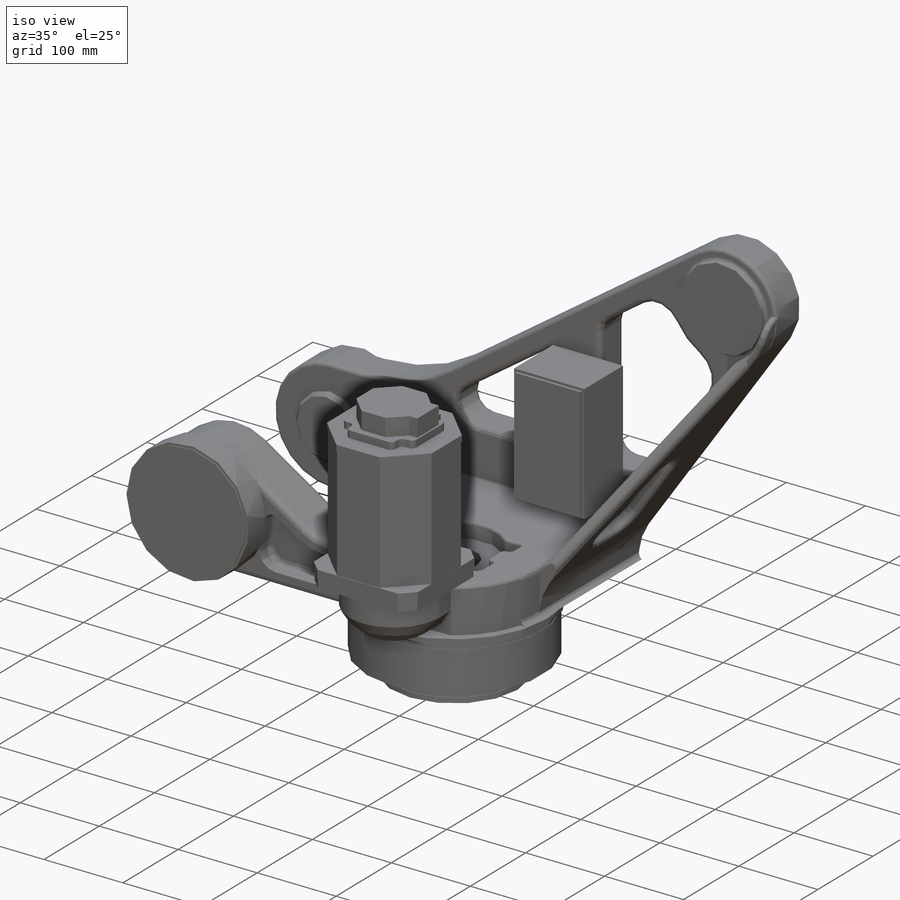
[diagram: iso view]
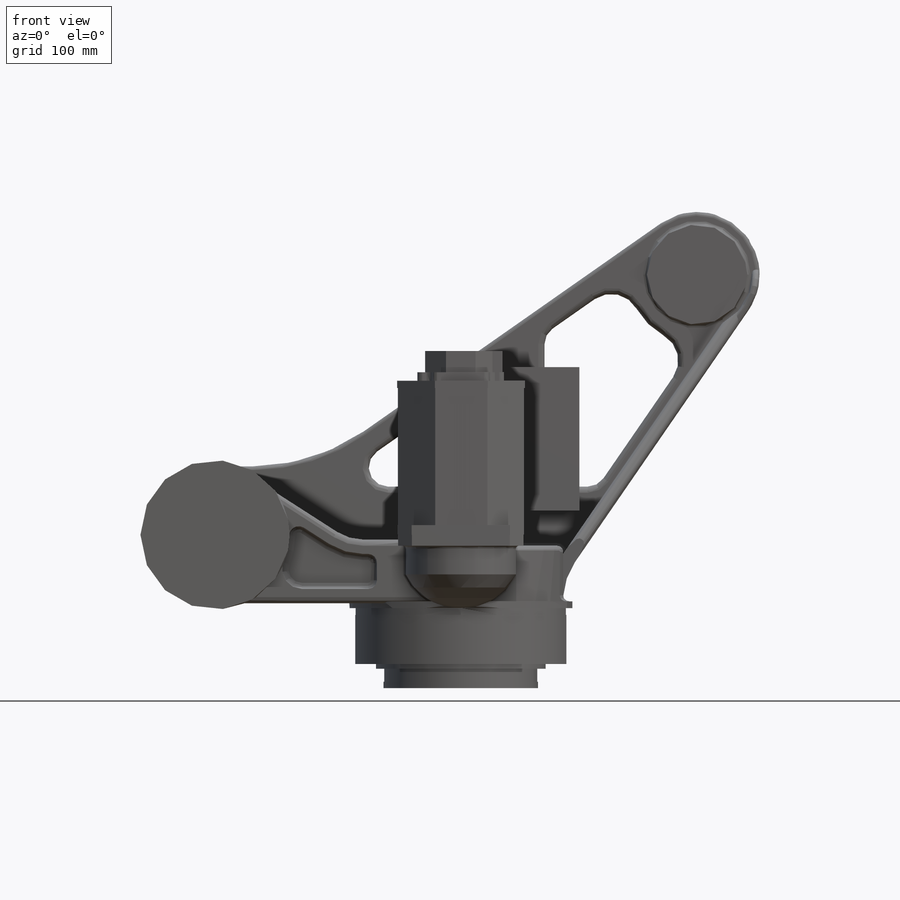
[diagram: front view]
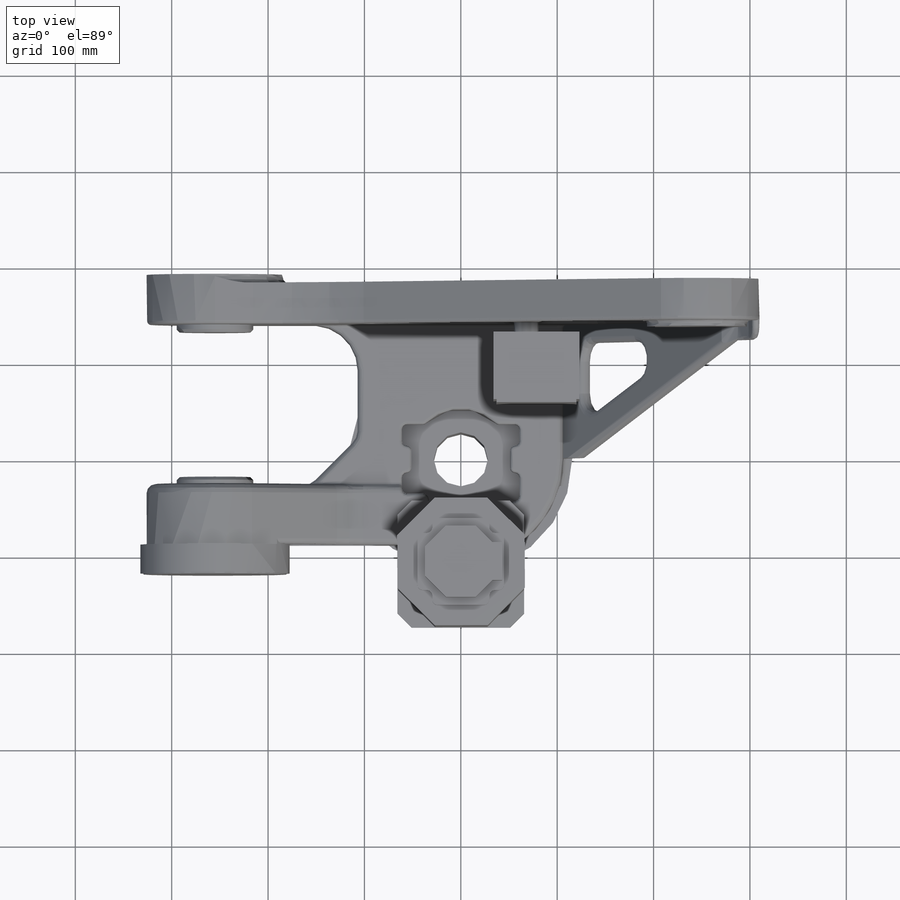
[diagram: top view]
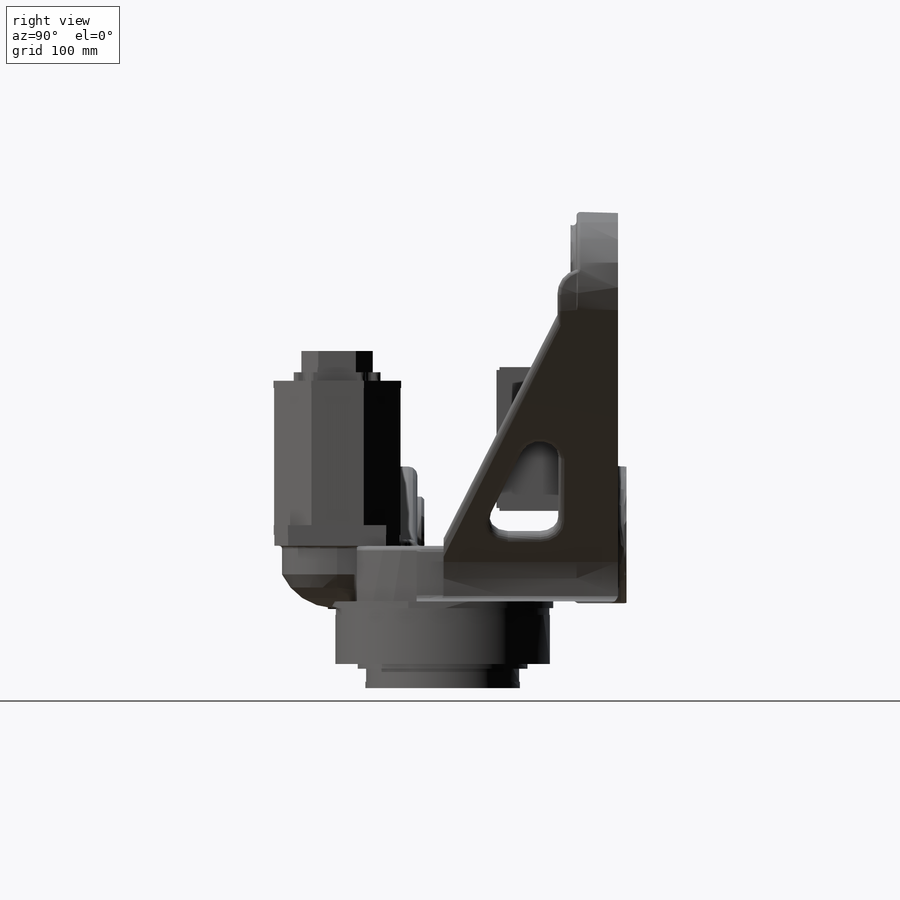
[diagram: right view]
SOLIDWORKS PART (.sldprt)
format: sldprt  version: not decoded by parser v0  size: 4,766,720 bytes
history: native  units: mm
features: sketch x28, extrude x15, cut_extrude x7, fillet x6, material x1, plane x1 (+13 scaffold rows collapsed)
feature tree (71):
  scaffold x13  (default folders/planes/origin — collapsed)
  material  "Material <not specified>"
  sketch  "Sketch1"
  sketch  "Sketch2"
  sketch  "Sketch3"  dims[D1=160.274mm]
  extrude  "Extrude1"  [1 undecoded]
  sketch  "Sketch4"  dims[D1=0.762mm]
  extrude  "Extrude2"  [1 undecoded]
  sketch  "Sketch5"  dims[D1=8.636mm]
  extrude  "Extrude3"  [1 undecoded]
  sketch  "Sketch6"  dims[D1=23.241mm]
  extrude  "Extrude4"  [1 undecoded]
  sketch  "Sketch7"  dims[D1=0.508mm]
  extrude  "Extrude5"  [1 undecoded]
  sketch  "Sketch8"  dims[D1=5.08mm]
  extrude  "Extrude6"  [1 undecoded]
  plane  "Plane1"  Offset=26.162mm
  sketch  "Sketch9"
  extrude  "Extrude7"  [1 undecoded]
  sketch  "Sketch10"
  cut_extrude  "Cut-Extrude1"  [1 undecoded]
  sketch  "Sketch11"
  cut_extrude  "Cut-Extrude2"  Depth=12.7mm
  sketch  "Sketch12"
  sketch  "Sketch17"  dims[D1=5.08mm]
  cut_extrude  "Cut-Extrude3"  Depth=19.05mm
  sketch  "Sketch18"
  extrude  "Extrude13"  [1 undecoded]
  sketch  "Sketch19"  dims[D1=3.175mm]
  extrude  "Extrude14"  [1 undecoded]
  sketch  "Sketch20"
  extrude  "Extrude15"  [1 undecoded]
  sketch  "Sketch21"  dims[c1.D2=19.05mm c1.D1=38.1mm c2.D2=~124.29539mm]
  extrude  "Extrude17"  [1 undecoded]
  sketch  "Sketch22"
  cut_extrude  "Cut-Extrude4"  [1 undecoded]
  sketch  "Sketch23"
  extrude  "Extrude18"  [1 undecoded]
  sketch  "Sketch24"
  sketch  "Sketch26"
  extrude  "Extrude19"  [1 undecoded]
  sketch  "Sketch27"
  cut_extrude  "Cut-Extrude8"  Depth=25.4mm
  sketch  "Sketch28"  dims[D4=19.05mm D1=31.75mm D2=19.05mm D3=31.75mm]
  cut_extrude  "Cut-Extrude9"  [1 undecoded]
  sketch  "Sketch34"
  cut_extrude  "Cut-Extrude10"  Depth=101.6mm
  sketch  "Sketch35"
  extrude  "Extrude25"  Depth=6.35mm
  sketch  "Sketch36"  dims[D2=25.4mm D3=25.4mm D1=19.05mm]
  fillet  "Fillet3"  Radius=6.35mm
  fillet  "Fillet6"  Radius=6.35mm
  fillet  "Fillet7"  Radius=6.35mm
  fillet  "Fillet8"  Radius=25.4mm
  fillet  "Fillet9"  Radius=3.81mm
  fillet  "Fillet12"  Radius=3.81mm
  sketch  "Sketch39"  dims[D1=79.375mm]
  sketch  "Sketch40"
  extrude  "Boss-Extrude1"  [1 undecoded]
decode coverage: 23 of 56 modeling features carry decoded parameters
note: ~ marks probable driven/reference dimensions
note: 17 parameter values undecoded
summary: no parameter record found for 17 features
note: suppression state not decoded; provenance and decode notes live in map.json
